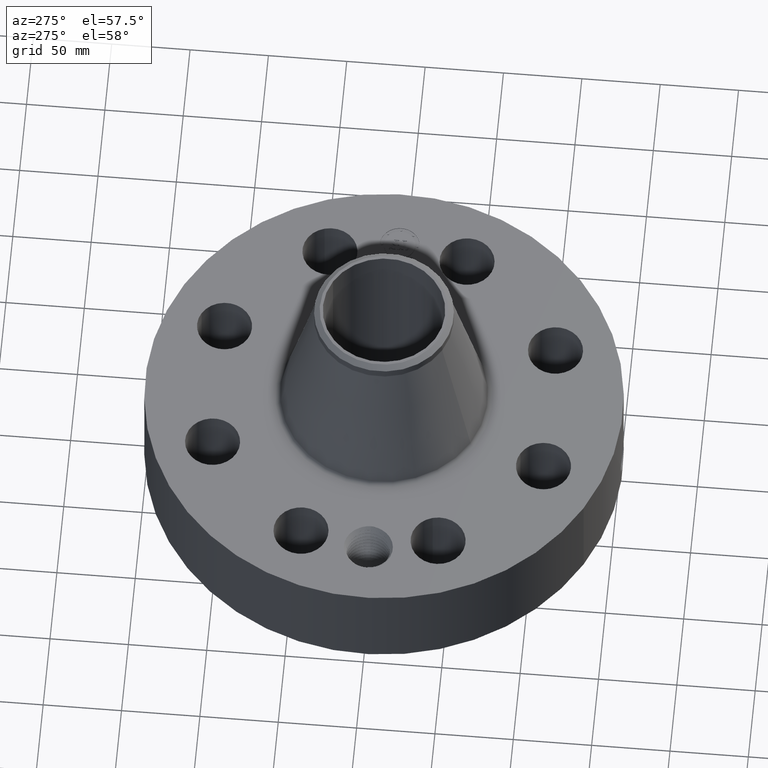
[diagram: clean part render]
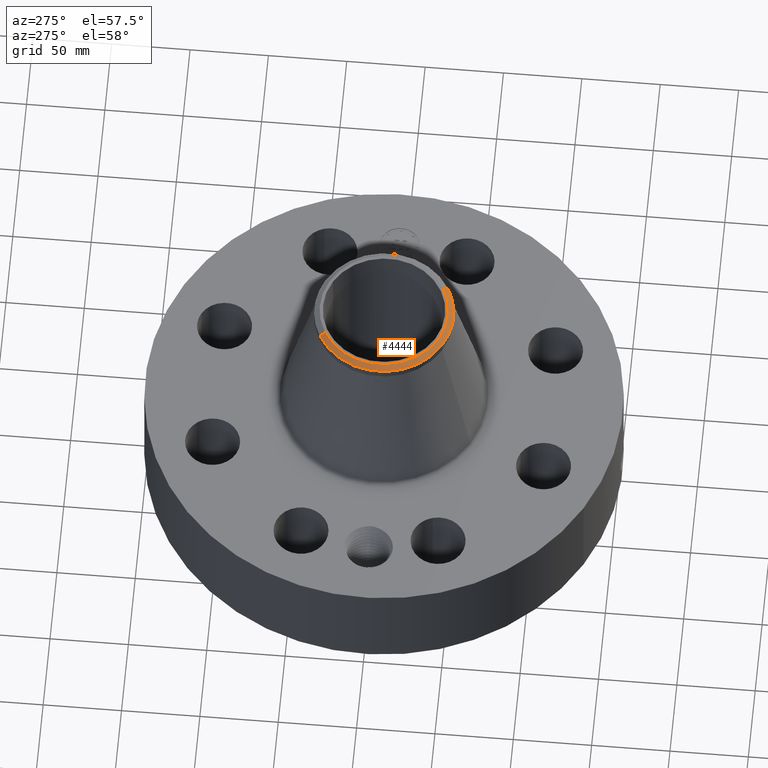
[diagram: same view with one face highlighted and labeled with its STEP entity id]
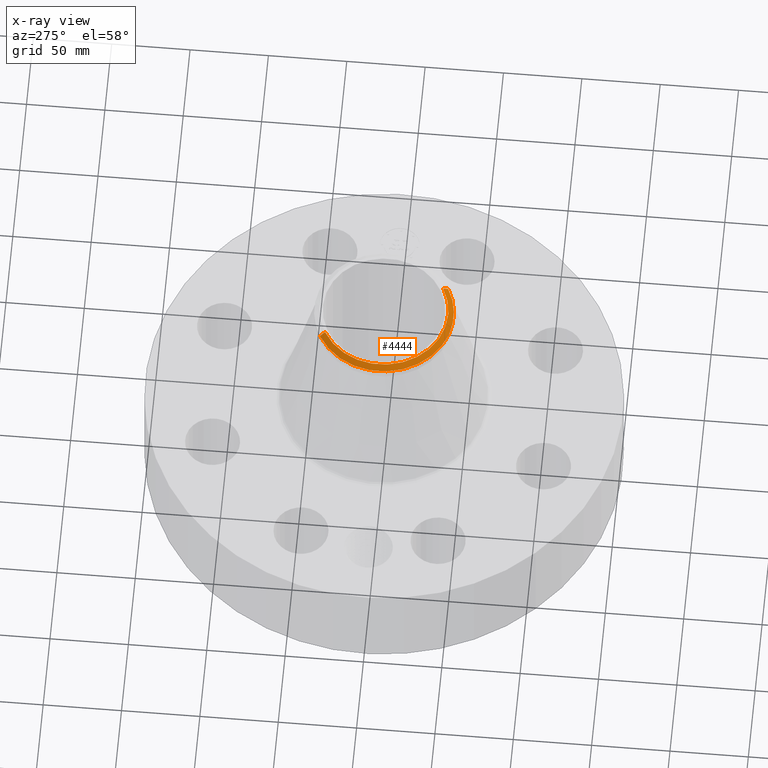
[diagram: x-ray of the same camera — body ghosted, the highlighted face saturated]
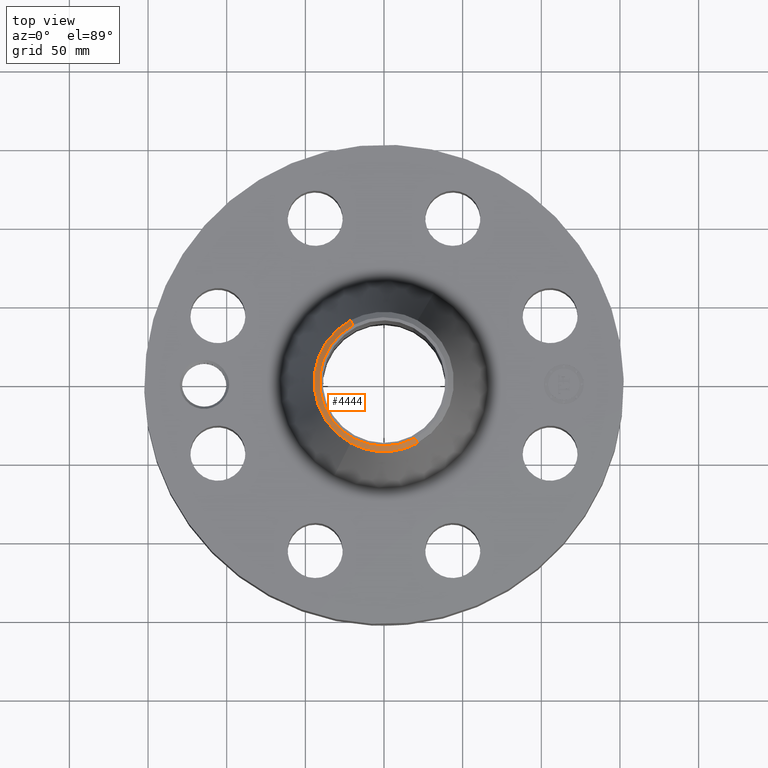
[diagram: same view with one face highlighted and labeled with its STEP entity id]
A machine part, auxiliary view. The second image highlights one B-rep face of the part: STEP entity #4444.
The next image is the same camera in x-ray: the body ghosted, the highlighted face saturated — about 0% of this face is hidden behind the body in this view.
A second angle (top view) of the same face is appended — the face is thin or edge-on in the first view.
In plain terms, the highlighted conical surface has half-angle 52.5 deg.
Its self-contained STEP definition (entity closure, byte-faithful):
#3270=AXIS2_PLACEMENT_3D('Circle Axis2P3D',#3268,#3269,$) ;
#3283=AXIS2_PLACEMENT_3D('Circle Axis2P3D',#3281,#3282,$) ;
#4073=AXIS2_PLACEMENT_3D('Circle Axis2P3D',#4071,#4072,$) ;
#4417=AXIS2_PLACEMENT_3D('Cone Axis2P3D',#4414,#4415,#4416) ;
#3251=CARTESIAN_POINT('Vertex',(-0.838994692561,-1.53576948331,6.7646768185)) ;
#3265=CARTESIAN_POINT('Vertex',(0.838994692561,-1.53576948331,6.7646768185)) ;
#3268=CARTESIAN_POINT('Axis2P3D Location',(0.,0.,6.7646768185)) ;
#3281=CARTESIAN_POINT('Axis2P3D Location',(0.,0.,6.7646768185)) ;
#3285=CARTESIAN_POINT('Vertex',(-0.838994692561,1.53576948331,6.7646768185)) ;
#4066=CARTESIAN_POINT('Vertex',(0.773188818632,-1.41531263907,6.87000000003)) ;
#4068=CARTESIAN_POINT('Vertex',(-0.773188818632,1.41531263907,6.87000000003)) ;
#4071=CARTESIAN_POINT('Axis2P3D Location',(0.,0.,6.87000000003)) ;
#4414=CARTESIAN_POINT('Axis2P3D Location',(0.,0.,6.87000000003)) ;
#4419=CARTESIAN_POINT('Line Origine',(-0.806091755596,1.47554106119,6.81733840926)) ;
#4424=CARTESIAN_POINT('Line Origine',(0.806091755596,-1.47554106119,6.81733840926)) ;
#3269=DIRECTION('Axis2P3D Direction',(0.,0.,-0.0393700787402)) ;
#3282=DIRECTION('Axis2P3D Direction',(0.,0.,-0.0393700787402)) ;
#4072=DIRECTION('Axis2P3D Direction',(0.,0.,-0.0393700787402)) ;
#4415=DIRECTION('Axis2P3D Direction',(-0.,-0.,-0.0393700787402)) ;
#4416=DIRECTION('Axis2P3D XDirection',(0.0188750212049,-0.0345504945626,0.)) ;
#4420=DIRECTION('Vector Direction',(-0.014974561121,0.02741075027,-0.023966985394)) ;
#4425=DIRECTION('Vector Direction',(0.014974561121,-0.02741075027,-0.023966985394)) ;
#4421=VECTOR('Line Direction',#4420,0.0393700787402) ;
#4426=VECTOR('Line Direction',#4425,0.0393700787402) ;
#4438=ORIENTED_EDGE('',*,*,#4428,.F.) ;
#4439=ORIENTED_EDGE('',*,*,#4075,.F.) ;
#4440=ORIENTED_EDGE('',*,*,#4423,.T.) ;
#4441=ORIENTED_EDGE('',*,*,#3287,.T.) ;
#4442=ORIENTED_EDGE('',*,*,#3272,.F.) ;
#4444=ADVANCED_FACE('PartBody',(#4443),#4418,.T.) ;
#3271=CIRCLE('generated circle',#3270,1.75000000001) ;
#3284=CIRCLE('generated circle',#3283,1.75000000001) ;
#4074=CIRCLE('generated circle',#4073,1.61274015749) ;
#4418=CONICAL_SURFACE('Cone',#4417,1.61274015749,0.916297857297) ;
#3272=EDGE_CURVE('',#3266,#3252,#3271,.T.) ;
#3287=EDGE_CURVE('',#3286,#3252,#3284,.F.) ;
#4075=EDGE_CURVE('',#4069,#4067,#4074,.F.) ;
#4423=EDGE_CURVE('',#4069,#3286,#4422,.T.) ;
#4428=EDGE_CURVE('',#4067,#3266,#4427,.T.) ;
#4437=EDGE_LOOP('',(#4438,#4439,#4440,#4441,#4442)) ;
#4443=FACE_OUTER_BOUND('',#4437,.T.) ;
#4422=LINE('Line',#4419,#4421) ;
#4427=LINE('Line',#4424,#4426) ;
#3252=VERTEX_POINT('',#3251) ;
#3266=VERTEX_POINT('',#3265) ;
#3286=VERTEX_POINT('',#3285) ;
#4067=VERTEX_POINT('',#4066) ;
#4069=VERTEX_POINT('',#4068) ;